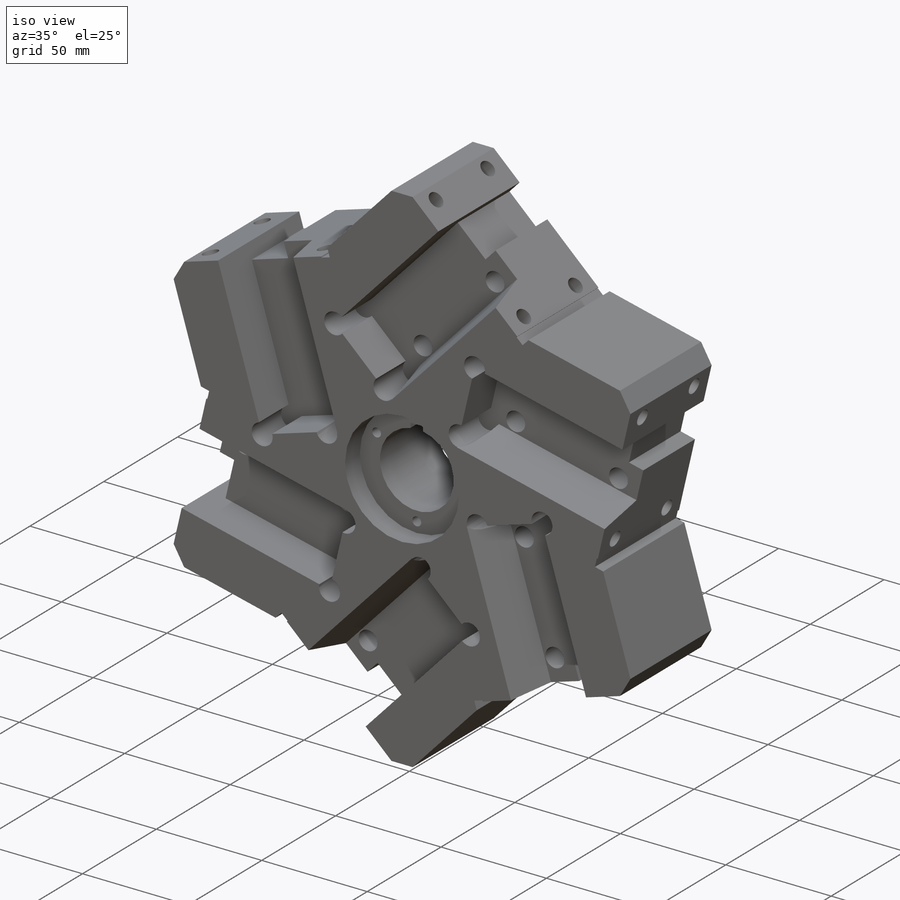
[diagram: iso view]
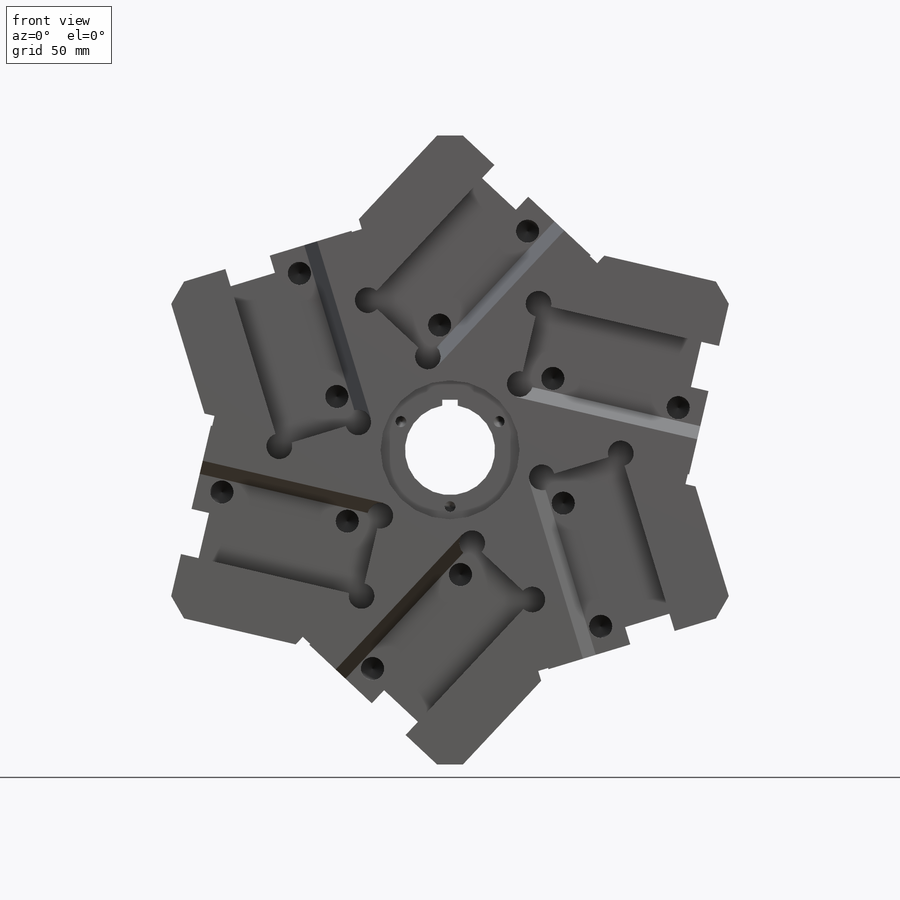
[diagram: front view]
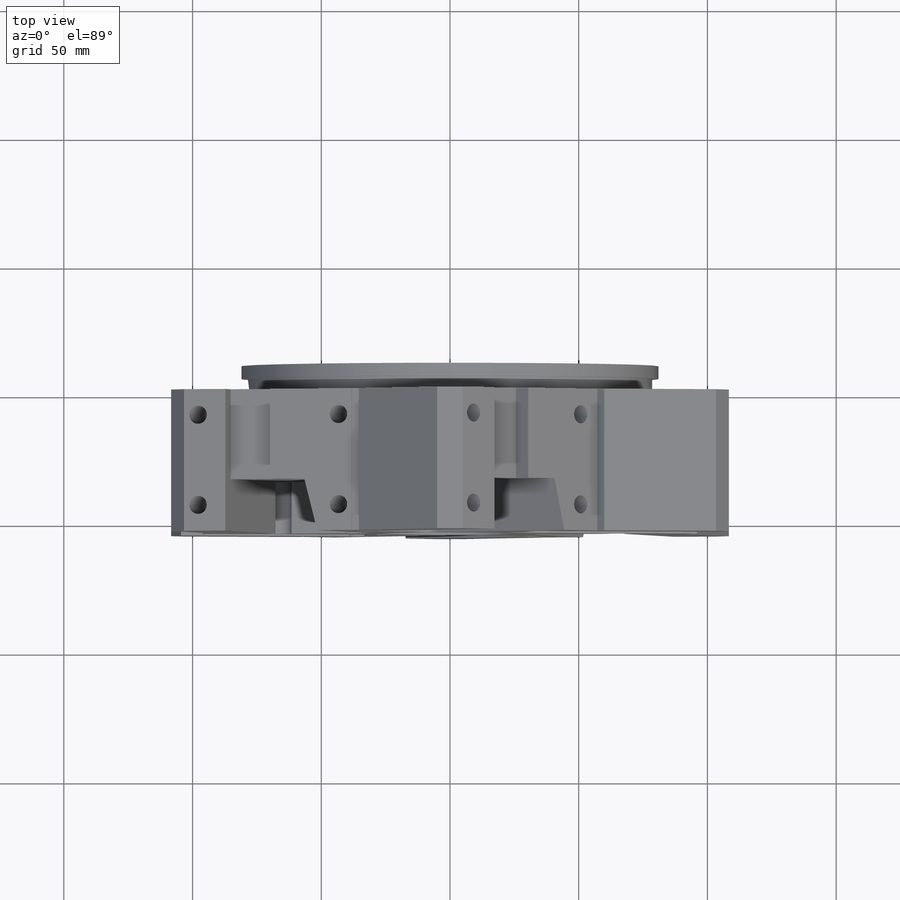
[diagram: top view]
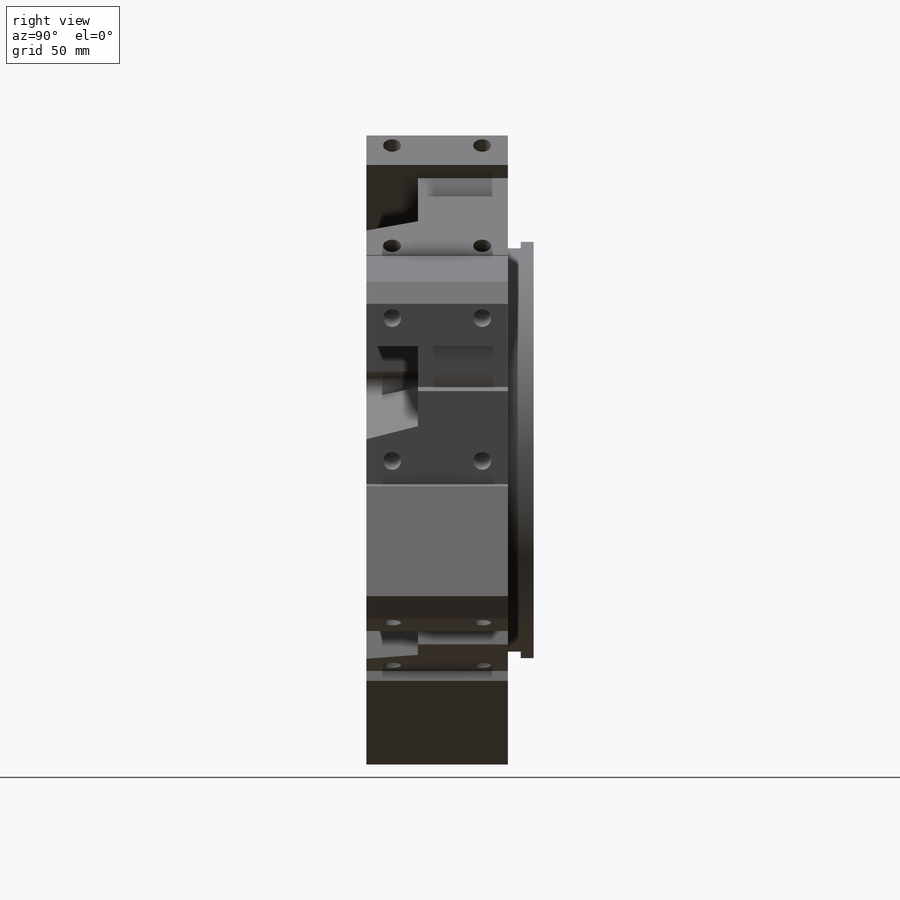
[diagram: right view]
SOLIDWORKS PART (.sldprt)
format: sldprt  version: not decoded by parser v0  size: 1,532,928 bytes
history: native  units: mm
features: sketch x23, cut_extrude x11, pattern_circular x9, thread x7, extrude x4, hole x4, material x1, plane x1 (+14 scaffold rows collapsed)
feature tree (74):
  scaffold x14  (default folders/planes/origin — collapsed)
  material  "201 Annealed Stainless Steel (SS)"
  sketch  "Sketch3"  dims[c1.D1=~180.99371mm c1.D2=10.0mm c1.D3=10.0mm c1.D4=~175.220208mm c2.D1=244.36mm c2.D4=6.0]
  extrude  "Boss-Extrude1"  Depth=55mm
  sketch  "Sketch4"  dims[c1.D8=35.0mm c1.D1=10.0mm c2.D1=45.07deg c2.D2=0.5mm c2.D3=10.0mm c3.D3=44.93deg c3.D4=4.0mm c3.D5=68.0mm c3.D1=44.53mm c4.D3=4.0mm c4.D6=~116.168594mm c4.D9=6.0mm c4.D10=2.0mm c4.D7=6.0]
  cut_extrude  "Cut-Extrude2"  Depth=141mm
  sketch  "Sketch5"  dims[D4=10.0mm D1=24.08mm D2=32.0mm D3=72.0mm D6=24.08mm D5=6.0]
  cut_extrude  "Cut-Extrude3"  Depth=20mm
  sketch  "Sketch6"  dims[c1.D1=14.0mm c1.D2=~27.234619mm c2.D2=~48.207415deg c2.D3=~27.234619mm]
  cut_extrude  "Cut-Extrude4"  Depth=72mm
  sketch  "Sketch7"  dims[D1=54.0mm]
  cut_extrude  "Cut-Extrude7"  Depth=10mm
  pattern_circular  "CirPattern5"  Count=6 Angle=60deg
  sketch  "Sketch9"  dims[D1=18.0mm D2=7.0mm]
  cut_extrude  "Cut-Extrude8"  [1 undecoded]
  pattern_circular  "CirPattern6"  Count=6 Angle=60deg
  hole  "M10x1.0 Tapped Hole1"  Diameter=9mm Depth=25mm
  sketch  "Sketch11"  dims[D1=10.0mm D2=27.0mm D3=50.0mm]
  sketch  "Sketch10"  dims[hole-wizard template sketch: 46 standard entries collapsed; hole parameters kept: c15.Tap Drill Dia.=9.0mm c15.Tap Drill Depth=25.0mm c15.D3=~14.816244mm c15.Drill Angle=118.0deg]
  thread  "Hole Thread1"  Diameter=20mm  [1 undecoded]
  thread  "Hole Thread2"  Diameter=20mm  [1 undecoded]
  pattern_circular  "CirPattern7"  Count=6 Angle=60deg
  hole  "M8x1.0 Tapped Hole1"  Diameter=7mm Depth=20mm
  sketch  "Sketch13"  dims[D1=10.0mm D2=13.0mm D3=57.0mm D4=35.0mm]
  sketch  "Sketch12"  dims[hole-wizard template sketch: 46 standard entries collapsed; hole parameters kept: c15.Tap Drill Dia.=7.0mm c15.Tap Drill Depth=20.0mm c15.D3=~14.816244mm c15.Drill Angle=118.0deg]
  thread  "Hole Thread3"  Diameter=19mm  [1 undecoded]
  thread  "Hole Thread4"  Diameter=19mm  [1 undecoded]
  thread  "Hole Thread5"  Diameter=19mm  [1 undecoded]
  thread  "Hole Thread6"  Diameter=19mm  [1 undecoded]
  pattern_circular  "CirPattern8"  Count=6 Angle=60deg
  hole  "M5 Tapped Hole1"  Diameter=4.2mm Depth=25mm
  sketch  "Sketch15"  dims[D1=44.0mm]
  sketch  "Sketch14"  dims[hole-wizard template sketch: 47 standard entries collapsed; hole parameters kept: c15.Tap Drill Depth=25.0mm c15.D3=~14.816244mm c15.Drill Angle=118.0deg]
  thread  "Hole Thread7"  Diameter=24mm  [1 undecoded]
  pattern_circular  "CirPattern9"  Count=3 Angle=120deg
  sketch  "Sketch16"  dims[c1.D1=~99.079094mm c1.D2=152.0mm c2.D1=2.5mm]
  extrude  "Boss-Extrude2"  Depth=5mm
  sketch  "Sketch17"  dims[D1=5.0mm]
  extrude  "Boss-Extrude3"  Depth=5mm
  sketch  "Sketch18"  dims[D1=112.0mm]
  cut_extrude  "Cut-Extrude9"  Depth=1.5mm
  sketch  "Sketch19"  dims[D1=70.0mm]
  cut_extrude  "Cut-Extrude10"  Depth=5.5mm
  sketch  "Sketch20"  dims[D1=6.0mm]
  cut_extrude  "Cut-Extrude11"  Depth=5.5mm
  plane  "Plane1"  Offset=12mm
  sketch  "Sketch22"  dims[c1.D1=12.0mm c1.D2=~8.68934mm c1.D3=~8.68934mm c2.D3=~59.97932deg]
  cut_extrude  "Cut-Extrude13"  [1 undecoded]
  pattern_circular  "CirPattern10"  Count=6 Angle=60deg
  pattern_circular  "CirPattern11"  Count=6 Angle=60deg
  hole  "CBORE for M6 Hex Socket Head Cap Screw1"  Diameter=6.6mm Depth=20mm
  sketch  "Sketch27"  dims[c1.D1=~23.337288mm c2.D1=60.0deg c2.D2=9.95mm c3.D1=89.9mm c4.D1=60.0deg c4.D3=56.0mm c5.D1=9.95mm c5.D3=89.9mm c6.D3=60.0deg c6.D4=83.9mm c7.D4=60.0deg c8.D4=89.9mm]
  sketch  "Sketch28"  dims[hole-wizard template sketch: 28 standard entries collapsed; hole parameters kept: c8.Hole Dia.=6.6mm c8.Hole Depth=20.0mm c8.C'Bore Dia.=11.0mm c8.C'Bore Depth=6.0mm c8.D5=~14.816244mm c8.Drill Angle=118.0deg]
  sketch  "Sketch29"  dims[c1.D2=5.0mm c1.D3=5.0mm c1.D1=~24.559598mm c2.D1=60.0deg c2.D3=2.0mm]
  cut_extrude  "Cut-Extrude14"  Depth=10mm
  sketch  "Sketch30"  dims[c1.D1=~9.937613mm c1.D2=8.0mm c2.D1=2.0mm]
  cut_extrude  "Cut-Extrude15"  Depth=12mm
  pattern_circular  "CirPattern12"  Count=6 Angle=60deg
  sketch  "Sketch31"  dims[c1.D1=134.0mm c1.D2=8.5mm c1.D3=5.0mm c1.D4=2.5mm c2.D3=5.0mm c2.D5=5.0mm c3.D3=4.15mm]
  extrude  "Boss-Extrude4"  Depth=7mm
  pattern_circular  "CirPattern13"  Count=70 Angle=5.142857deg
decode coverage: 56 of 58 modeling features carry decoded parameters
note: ~ marks probable driven/reference dimensions
note: 9 parameter values undecoded
summary: Diameter pulled from absorbed wizard sketch
note: suppression state not decoded; provenance and decode notes live in map.json
